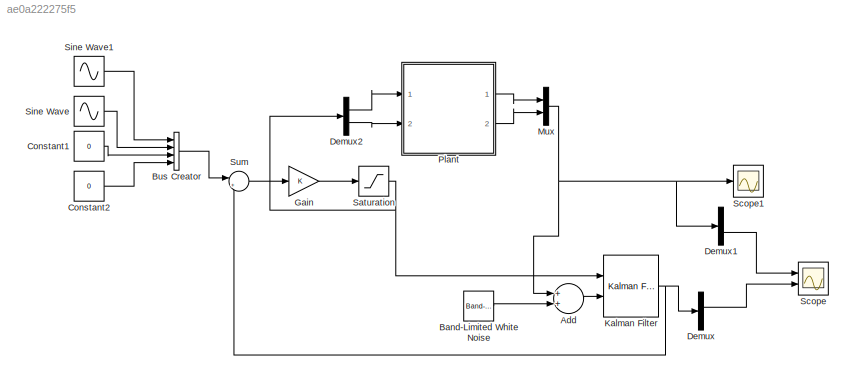
MODEL slx_ae0a222275f5
KIND model
CONFIG AbsTol = auto
CONFIG EnableMultiTasking = off
CONFIG FixedStep = auto
CONFIG MaxStep = auto
CONFIG MinStep = auto
CONFIG RelTol = 1e-3
CONFIG SampleTimeConstraint = Unconstrained
CONFIG Solver = VariableStepAuto
CONFIG SolverName = VariableStepAuto
CONFIG StartTime = 0.0
CONFIG StopTime = 40
BLOCK [Sum] Add
  InputSameDT = off
  OutDataTypeStr = Inherit: Inherit via internal rule
  Ports = [2, 1]
  SaturateOnIntegerOverflow = off
BLOCK [Reference] Band-Limited White Noise  REF=simulink/Sources/Band-Limited
White Noise
  Ports = [0, 1]
  SourceBlock = simulink/Sources/Band-Limited\nWhite Noise
  SourceProductBaseCode = SL
  SourceProductName = Simulink
  SourceType = Band-Limited White Noise.
BLOCK [BusCreator] Bus Creator
  DisplayOption = bar
  InheritFromInputs = on
  Inputs = 4
  Ports = [4, 1]
BLOCK [Constant] Constant1
  Value = 0
BLOCK [Constant] Constant2
  Value = 0
BLOCK [Demux] Demux
  DisplayOption = bar
  Ports = [1, 4]
BLOCK [Demux] Demux1
  DisplayOption = bar
  Outputs = 2
  Ports = [1, 2]
BLOCK [Demux] Demux2
  DisplayOption = bar
  Outputs = 2
  Ports = [1, 2]
BLOCK [Gain] Gain
  Gain = K
  Multiplication = Matrix(K*u)
  OutDataTypeStr = Inherit: Inherit via internal rule
  ParamDataTypeStr = Inherit: Inherit via internal rule
  SaturateOnIntegerOverflow = off
BLOCK [Reference] Kalman Filter  REF=ctrlSharedLib/Kalman Filter
  Ports = [2, 1]
  SourceBlock = ctrlSharedLib/Kalman Filter
  SourceProductBaseCode = CT
  SourceProductName = Control System Toolbox
  SourceType = ctrlKalmanFilter
BLOCK [Mux] Mux
  DisplayOption = bar
  Inputs = 2
  Ports = [2, 1]
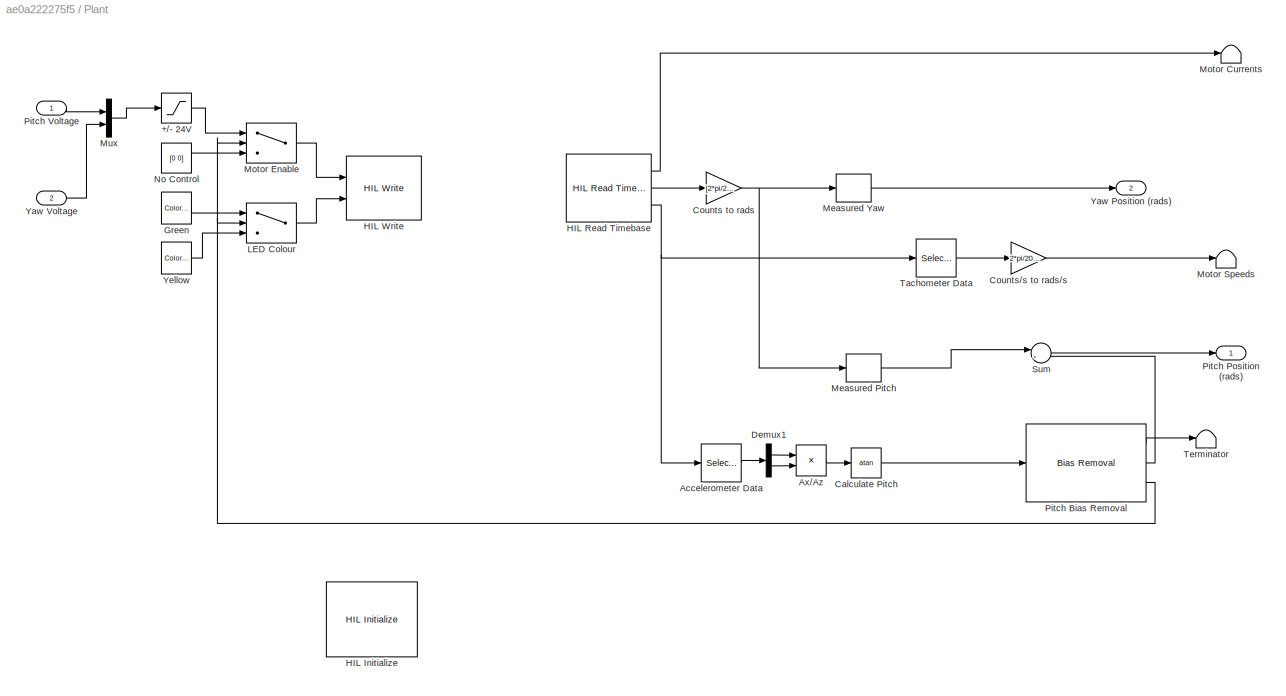
BLOCK [SubSystem] Plant
  Ports = [2, 2]
  RequestExecContextInheritance = off
BLOCK [Saturate] Plant/+//- 24V
  InputPortMap = u0
  LowerLimit = -24
  Ports = [1, 1]
  UpperLimit = 24
BLOCK [Selector] Plant/Accelerometer Data
  IndexOptions = Index vector (dialog)
  Indices = [1 2]
  InputPortWidth = 4
  OutputSizes = 1
  Ports = [1, 1]
BLOCK [Product] Plant/Ax//Az
  InputSameDT = off
  Inputs = */
  OutDataTypeStr = Inherit: Inherit via internal rule
  Ports = [2, 1]
  RndMeth = Floor
  SaturateOnIntegerOverflow = off
BLOCK [Trigonometry] Plant/Calculate Pitch
  Operator = atan
  Ports = [1, 1]
BLOCK [Gain] Plant/Counts to rads
  Gain = [2*pi/2048 2*pi/4096]
  OutDataTypeStr = Inherit: Inherit via internal rule
  ParamDataTypeStr = Inherit: Inherit via internal rule
  SaturateOnIntegerOverflow = off
BLOCK [Gain] Plant/Counts//s to rads//s
  Gain = 2*pi/2048
  OutDataTypeStr = Inherit: Inherit via internal rule
  ParamDataTypeStr = Inherit: Inherit via internal rule
  SaturateOnIntegerOverflow = off
BLOCK [Demux] Plant/Demux1
  DisplayOption = bar
  Outputs = 2
  Ports = [1, 2]
BLOCK [Reference] Plant/Green  REF=quarc_library/Sources/Signals/Color Constant
  Ports = [0, 1]
  SourceBlock = quarc_library/Sources/Signals/Color Constant
  SourceType = Color Constant
BLOCK [Reference] Plant/HIL Initialize  REF=quarc_library/Data Acquisition/Generic/Configuration/HIL Initialize
  AttributesFormatString = %<object_name> (%<board_type>-%<board_number>)
  Ports = []
  Priority = -99
  SourceBlock = quarc_library/Data Acquisition/Generic/Configuration/HIL Initialize
  SourceType = HIL Initialize
  UserDataPersistent = on
BLOCK [Reference] Plant/HIL Read Timebase  REF=quarc_library/Data Acquisition/Generic/Timebases/HIL Read
Timebase
  AttributesFormatString = (%<object_name>)
  Ports = [0, 3]
  SourceBlock = quarc_library/Data Acquisition/Generic/Timebases/HIL Read\nTimebase
  SourceType = HIL Read Timebase
  UserDataPersistent = on
BLOCK [Reference] Plant/HIL Write  REF=quarc_library/Data Acquisition/Generic/Immediate I//O/HIL Write
  AttributesFormatString = (%<object_name>)
  Ports = [2]
  SourceBlock = quarc_library/Data Acquisition/Generic/Immediate I//O/HIL Write
  SourceType = HIL Write
  UserDataPersistent = on
BLOCK [Switch] Plant/LED Colour
  Criteria = u2 > Threshold
  InputSameDT = off
  SaturateOnIntegerOverflow = off
BLOCK [Selector] Plant/Measured Pitch
  IndexOptions = Index vector (dialog)
  Indices = [1]
  InputPortWidth = 2
  OutputSizes = 1
  Ports = [1, 1]
BLOCK [Selector] Plant/Measured Yaw
  IndexOptions = Index vector (dialog)
  Indices = [2]
  InputPortWidth = 2
  OutputSizes = 1
  Ports = [1, 1]
BLOCK [Terminator] Plant/Motor Currents
BLOCK [Switch] Plant/Motor Enable
  Criteria = u2 > Threshold
  InputSameDT = off
  SaturateOnIntegerOverflow = off
BLOCK [Terminator] Plant/Motor Speeds
BLOCK [Mux] Plant/Mux
  DisplayOption = bar
  Inputs = 2
  Ports = [2, 1]
BLOCK [Constant] Plant/No Control
  Value = [0 0]
BLOCK [Reference] Plant/Pitch Bias Removal  REF=quarc_library/Discrete/Bias Removal
  Ports = [1, 3]
  SourceBlock = quarc_library/Discrete/Bias Removal
  SourceType = Bias Removal
BLOCK [Outport] Plant/Pitch Position (rads)
  IconDisplay = Port number
BLOCK [Inport] Plant/Pitch Voltage
  IconDisplay = Port number
BLOCK [Sum] Plant/Sum
  IconShape = round
  InputSameDT = off
  Inputs = |+-
  OutDataTypeStr = Inherit: Inherit via internal rule
  Ports = [2, 1]
  SaturateOnIntegerOverflow = off
BLOCK [Selector] Plant/Tachometer Data
  IndexOptions = Index vector (dialog)
  Indices = [3 4]
  InputPortWidth = 4
  OutputSizes = 1
  Ports = [1, 1]
BLOCK [Terminator] Plant/Terminator
BLOCK [Outport] Plant/Yaw Position (rads)
  IconDisplay = Port number
  Port = 2
BLOCK [Inport] Plant/Yaw Voltage
  IconDisplay = Port number
  Port = 2
BLOCK [Reference] Plant/Yellow  REF=quarc_library/Sources/Signals/Color Constant
  Ports = [0, 1]
  SourceBlock = quarc_library/Sources/Signals/Color Constant
  SourceType = Color Constant
BLOCK [Saturate] Saturation
  InputPortMap = u0
  LowerLimit = -25
  Ports = [1, 1]
  UpperLimit = 25
BLOCK [Scope] Scope
  Floating = off
  NumInputPorts = 2
  Ports = [2]
  ScopeSpecificationString = Simulink.scopes.TimeScopeBlockCfg('CurrentConfiguration', extmgr.ConfigurationSet(extmgr.Configuration('Core','General UI',true),extmgr.Configuration('Core','Source UI',true),extmgr.Configuration('Sources','WiredSimulink',true),extmgr.Configuration('Visuals','Time Domain',true,'SerializedDisplays',{struct('MinYLimReal','-6.82514','MaxYLimReal','8.24937','YLabelReal','','MinYLimMag','0.00000','MaxY...<+1453ch>
BLOCK [Scope] Scope1
  Floating = off
  NumInputPorts = 1
  Ports = [1]
  ScopeSpecificationString = Simulink.scopes.TimeScopeBlockCfg('CurrentConfiguration', extmgr.ConfigurationSet(extmgr.Configuration('Core','General UI',true),extmgr.Configuration('Core','Source UI',true),extmgr.Configuration('Sources','WiredSimulink',true,'DataLoggingVariableName','ScopeData1'),extmgr.Configuration('Visuals','Time Domain',true,'SerializedDisplays',{struct('MinYLimReal','-1.8213','MaxYLimReal','2.65483','YLabe...<+1408ch>
BLOCK [Sin] Sine Wave
  Amplitude = 10
  Ports = [0, 1]
  SampleTime = 0
BLOCK [Sin] Sine Wave1
  Amplitude = 10
  Ports = [0, 1]
  SampleTime = 0
BLOCK [Sum] Sum
  IconShape = round
  InputSameDT = off
  Inputs = |+-
  OutDataTypeStr = Inherit: Inherit via internal rule
  Ports = [2, 1]
  SaturateOnIntegerOverflow = off
LINE Add:1 -> Kalman Filter:2
LINE Band-Limited White Noise:1 -> Add:2
LINE Bus Creator:1 -> Sum:1
LINE Constant1:1 -> Bus Creator:3
LINE Constant2:1 -> Bus Creator:4
LINE Demux1:2 -> Scope:1
LINE Demux2:1 -> Plant:1
LINE Demux2:2 -> Plant:2
LINE Demux:2 -> Scope:2
LINE Gain:1 -> Saturation:1
NET Kalman Filter:1 -> Demux:1, Sum:2
NET Mux:1 -> Add:1, Demux1:1, Scope1:1
LINE Plant/+//- 24V:1 -> Plant/Motor Enable:1
LINE Plant/Accelerometer Data:1 -> Plant/Demux1:1
LINE Plant/Ax//Az:1 -> Plant/Calculate Pitch:1
LINE Plant/Calculate Pitch:1 -> Plant/Pitch Bias Removal:1
NET Plant/Counts to rads:1 -> Plant/Measured Pitch:1, Plant/Measured Yaw:1
LINE Plant/Counts//s to rads//s:1 -> Plant/Motor Speeds:1
LINE Plant/Demux1:1 -> Plant/Ax//Az:1
LINE Plant/Demux1:2 -> Plant/Ax//Az:2
LINE Plant/Green:1 -> Plant/LED Colour:1
LINE Plant/HIL Read Timebase:1 -> Plant/Motor Currents:1
LINE Plant/HIL Read Timebase:2 -> Plant/Counts to rads:1
NET Plant/HIL Read Timebase:3 -> Plant/Accelerometer Data:1, Plant/Tachometer Data:1
LINE Plant/LED Colour:1 -> Plant/HIL Write:2
LINE Plant/Measured Pitch:1 -> Plant/Sum:1
LINE Plant/Measured Yaw:1 -> Plant/Yaw Position (rads):1
LINE Plant/Motor Enable:1 -> Plant/HIL Write:1
LINE Plant/Mux:1 -> Plant/+//- 24V:1
LINE Plant/No Control:1 -> Plant/Motor Enable:3
LINE Plant/Pitch Bias Removal:1 -> Plant/Terminator:1
LINE Plant/Pitch Bias Removal:2 -> Plant/Sum:2
NET Plant/Pitch Bias Removal:3 -> Plant/LED Colour:2, Plant/Motor Enable:2
LINE Plant/Pitch Voltage:1 -> Plant/Mux:1
LINE Plant/Sum:1 -> Plant/Pitch Position (rads):1
LINE Plant/Tachometer Data:1 -> Plant/Counts//s to rads//s:1
LINE Plant/Yaw Voltage:1 -> Plant/Mux:2
LINE Plant/Yellow:1 -> Plant/LED Colour:3
LINE Plant:1 -> Mux:1
LINE Plant:2 -> Mux:2
NET Saturation:1 -> Demux2:1, Kalman Filter:1
LINE Sine Wave1:1 -> Bus Creator:1
LINE Sine Wave:1 -> Bus Creator:2
LINE Sum:1 -> Gain:1
note: NET lines group one-source signal fan-out (src -> all destinations, sorted); 1:1 wires keep LINE
